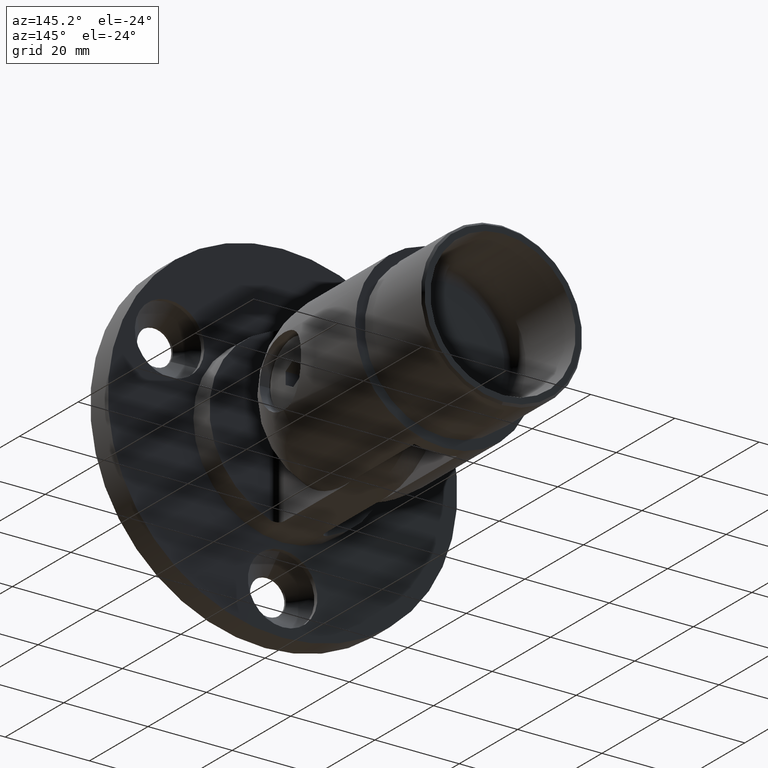
[diagram: clean part render]
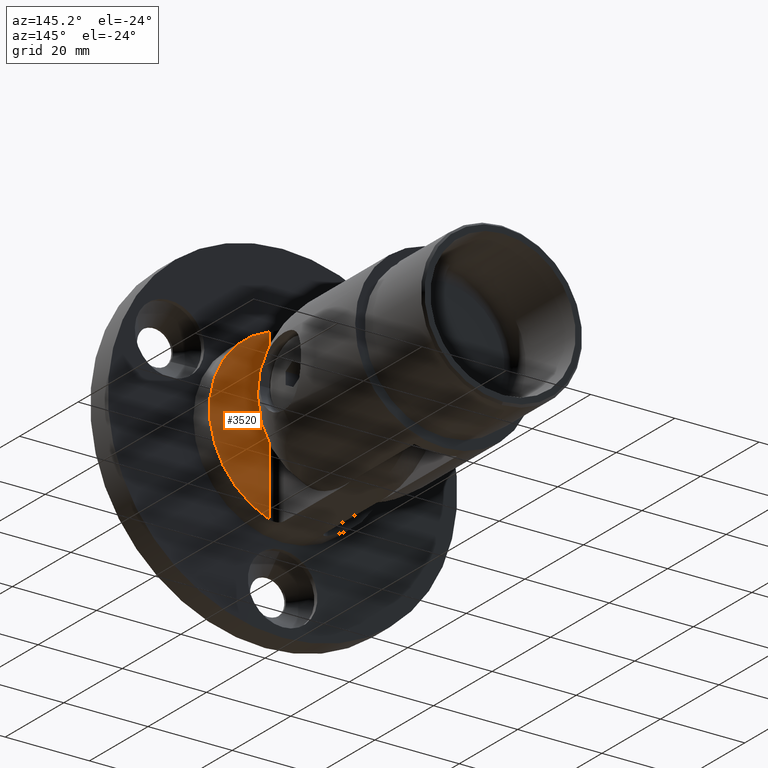
[diagram: same view with one face highlighted and labeled with its STEP entity id]
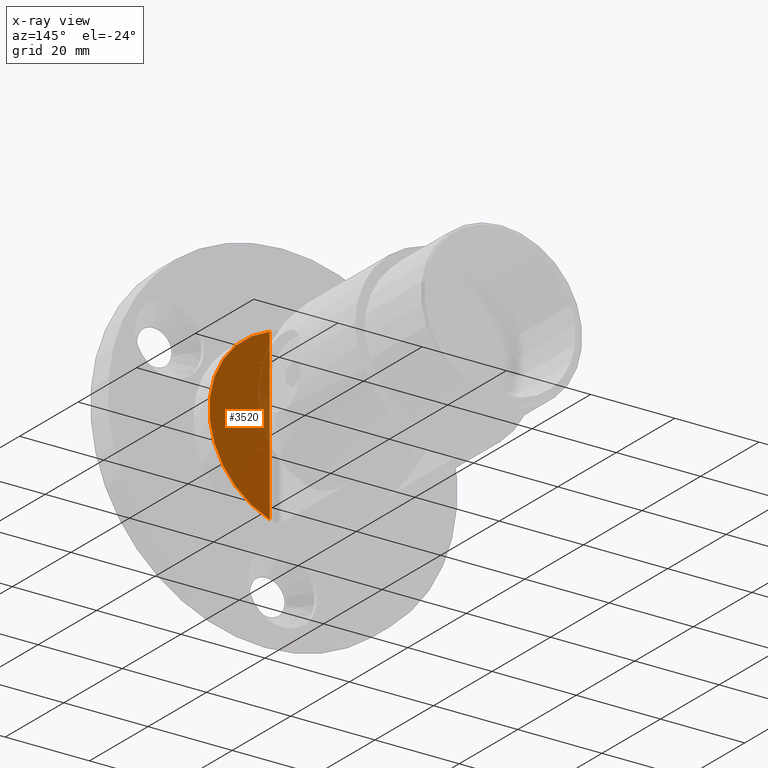
[diagram: x-ray of the same camera — body ghosted, the highlighted face saturated]
A machine part, auxiliary view. The second image highlights one B-rep face of the part: STEP entity #3520.
The next image is the same camera in x-ray: the body ghosted, the highlighted face saturated — about 9% of this face is hidden behind the body in this view.
In plain terms, the highlighted planar face has unit normal (0, 1, 0).
Its self-contained STEP definition (entity closure, byte-faithful):
#644 = ORIENTED_EDGE ( 'NONE', *, *, #15628, .T. ) ;
#1227 = EDGE_LOOP ( 'NONE', ( #644, #21873 ) ) ;
#2612 = AXIS2_PLACEMENT_3D ( 'NONE', #13668, #8321, #16949 ) ;
#3121 = DIRECTION ( 'NONE',  ( 2.523117377202919563E-16, -0.000000000000000000, 1.000000000000000000 ) ) ;
#3323 = AXIS2_PLACEMENT_3D ( 'NONE', #19395, #21177, #10689 ) ;
#3520 = ADVANCED_FACE ( 'NONE', ( #19402 ), #8535, .T. ) ;
#3652 = CIRCLE ( 'NONE', #3323, 21.19999999999999929 ) ;
#4018 = CARTESIAN_POINT ( 'NONE',  ( 6.899999999999995026, 11.50000000000000000, -20.04569779279334796 ) ) ;
#6511 = VECTOR ( 'NONE', #3121, 1000.000000000000000 ) ;
#7680 = EDGE_CURVE ( 'NONE', #12251, #8956, #19590, .T. ) ;
#8321 = DIRECTION ( 'NONE',  ( 0.000000000000000000, 1.000000000000000000, 0.000000000000000000 ) ) ;
#8535 = PLANE ( 'NONE',  #2612 ) ;
#8956 = VERTEX_POINT ( 'NONE', #15253 ) ;
#10689 = DIRECTION ( 'NONE',  ( 0.000000000000000000, 0.000000000000000000, 1.000000000000000000 ) ) ;
#12251 = VERTEX_POINT ( 'NONE', #4018 ) ;
#13668 = CARTESIAN_POINT ( 'NONE',  ( 0.000000000000000000, 11.50000000000000000, 0.000000000000000000 ) ) ;
#15253 = CARTESIAN_POINT ( 'NONE',  ( 6.900000000000004796, 11.50000000000000000, 20.04569779279334085 ) ) ;
#15628 = EDGE_CURVE ( 'NONE', #8956, #12251, #3652, .T. ) ;
#16949 = DIRECTION ( 'NONE',  ( 0.000000000000000000, -0.000000000000000000, 1.000000000000000000 ) ) ;
#19395 = CARTESIAN_POINT ( 'NONE',  ( 0.000000000000000000, 11.50000000000000000, 0.000000000000000000 ) ) ;
#19402 = FACE_OUTER_BOUND ( 'NONE', #1227, .T. ) ;
#19590 = LINE ( 'NONE', #20372, #6511 ) ;
#20372 = CARTESIAN_POINT ( 'NONE',  ( 6.899999999999999467, 11.50000000000000000, -1.740950990270014504E-15 ) ) ;
#21177 = DIRECTION ( 'NONE',  ( 0.000000000000000000, 1.000000000000000000, 0.000000000000000000 ) ) ;
#21873 = ORIENTED_EDGE ( 'NONE', *, *, #7680, .T. ) ;